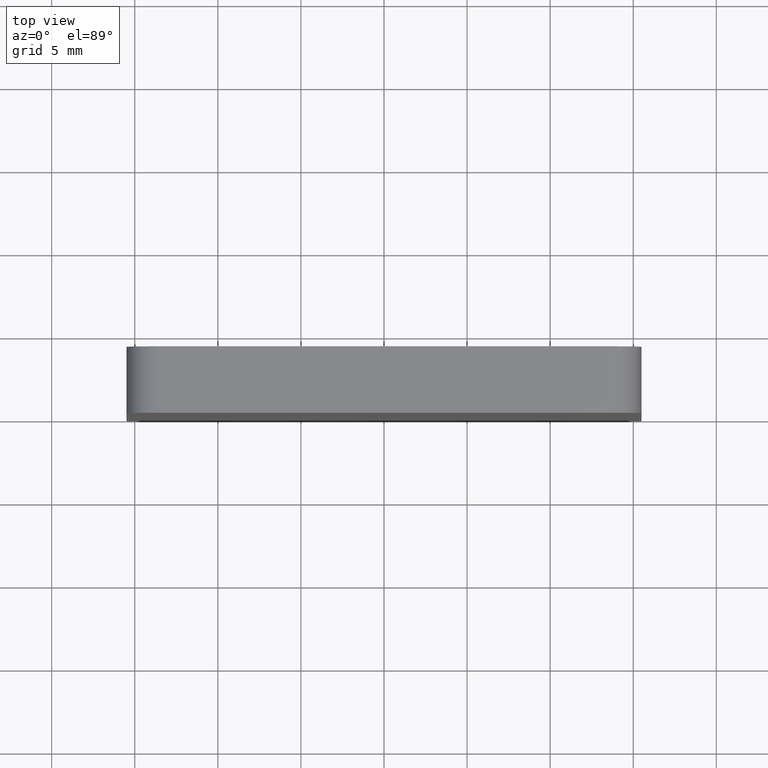
[diagram: clean part render]
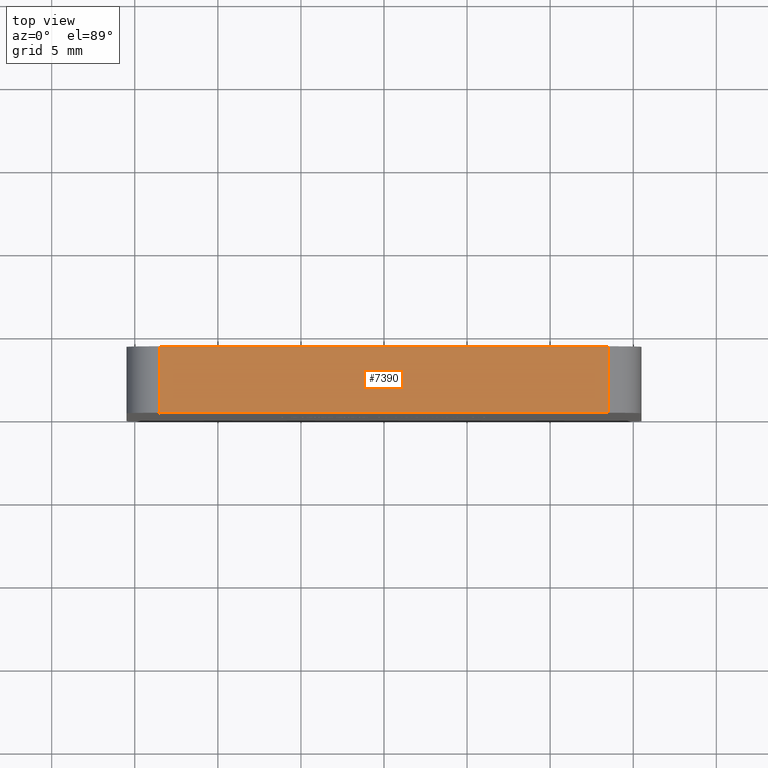
[diagram: same view with one face highlighted and labeled with its STEP entity id]
A machine part, top view. The second image highlights one B-rep face of the part: STEP entity #7390.
In plain terms, the highlighted planar face has unit normal (0, 0, -1).
Its self-contained STEP definition (entity closure, byte-faithful):
#420 = ORIENTED_EDGE ( 'NONE', *, *, #9139, .T. ) ;
#1101 = DIRECTION ( 'NONE',  ( 1.000000000000000000, 0.000000000000000000, 0.000000000000000000 ) ) ;
#1444 = ORIENTED_EDGE ( 'NONE', *, *, #15775, .F. ) ;
#3266 = ORIENTED_EDGE ( 'NONE', *, *, #16553, .T. ) ;
#3302 = LINE ( 'NONE', #3679, #7355 ) ;
#3679 = CARTESIAN_POINT ( 'NONE',  ( -13.49999999999999467, 4.000000000000000000, 15.50000000000000355 ) ) ;
#3971 = CARTESIAN_POINT ( 'NONE',  ( 13.50000000000000711, 4.000000000000000000, 15.50000000000000355 ) ) ;
#4610 = CARTESIAN_POINT ( 'NONE',  ( -13.49999999999999467, 0.000000000000000000, 15.50000000000000355 ) ) ;
#5127 = DIRECTION ( 'NONE',  ( 1.000000000000000000, 0.000000000000000000, 0.000000000000000000 ) ) ;
#5148 = CARTESIAN_POINT ( 'NONE',  ( -15.49999999999999467, 0.000000000000000000, 15.50000000000000355 ) ) ;
#5957 = EDGE_LOOP ( 'NONE', ( #1444, #13689, #3266, #420 ) ) ;
#6017 = DIRECTION ( 'NONE',  ( -0.000000000000000000, 1.000000000000000000, -0.000000000000000000 ) ) ;
#6388 = VERTEX_POINT ( 'NONE', #8217 ) ;
#6844 = AXIS2_PLACEMENT_3D ( 'NONE', #11991, #9579, #14737 ) ;
#7162 = LINE ( 'NONE', #9063, #9343 ) ;
#7355 = VECTOR ( 'NONE', #12679, 1000.000000000000000 ) ;
#7390 = ADVANCED_FACE ( 'NONE', ( #8218 ), #8108, .F. ) ;
#8108 = PLANE ( 'NONE',  #6844 ) ;
#8166 = LINE ( 'NONE', #16409, #10799 ) ;
#8217 = CARTESIAN_POINT ( 'NONE',  ( 13.50000000000000711, 0.000000000000000000, 15.50000000000000355 ) ) ;
#8218 = FACE_OUTER_BOUND ( 'NONE', #5957, .T. ) ;
#9063 = CARTESIAN_POINT ( 'NONE',  ( -15.49999999999999467, 4.000000000000000000, 15.50000000000000355 ) ) ;
#9139 = EDGE_CURVE ( 'NONE', #6388, #12698, #8166, .T. ) ;
#9343 = VECTOR ( 'NONE', #5127, 1000.000000000000000 ) ;
#9579 = DIRECTION ( 'NONE',  ( 0.000000000000000000, 0.000000000000000000, -1.000000000000000000 ) ) ;
#10799 = VECTOR ( 'NONE', #6017, 1000.000000000000000 ) ;
#11516 = EDGE_CURVE ( 'NONE', #12520, #13579, #3302, .T. ) ;
#11991 = CARTESIAN_POINT ( 'NONE',  ( -15.49999999999999467, 4.000000000000000000, 15.50000000000000355 ) ) ;
#12487 = CARTESIAN_POINT ( 'NONE',  ( -13.49999999999999467, 4.000000000000000000, 15.50000000000000355 ) ) ;
#12520 = VERTEX_POINT ( 'NONE', #12487 ) ;
#12651 = VECTOR ( 'NONE', #1101, 1000.000000000000000 ) ;
#12679 = DIRECTION ( 'NONE',  ( 0.000000000000000000, -1.000000000000000000, 0.000000000000000000 ) ) ;
#12698 = VERTEX_POINT ( 'NONE', #3971 ) ;
#13579 = VERTEX_POINT ( 'NONE', #4610 ) ;
#13689 = ORIENTED_EDGE ( 'NONE', *, *, #11516, .T. ) ;
#14737 = DIRECTION ( 'NONE',  ( -1.000000000000000000, 0.000000000000000000, -0.000000000000000000 ) ) ;
#15775 = EDGE_CURVE ( 'NONE', #12520, #12698, #7162, .T. ) ;
#16061 = LINE ( 'NONE', #5148, #12651 ) ;
#16409 = CARTESIAN_POINT ( 'NONE',  ( 13.50000000000000711, 4.000000000000000000, 15.50000000000000355 ) ) ;
#16553 = EDGE_CURVE ( 'NONE', #13579, #6388, #16061, .T. ) ;